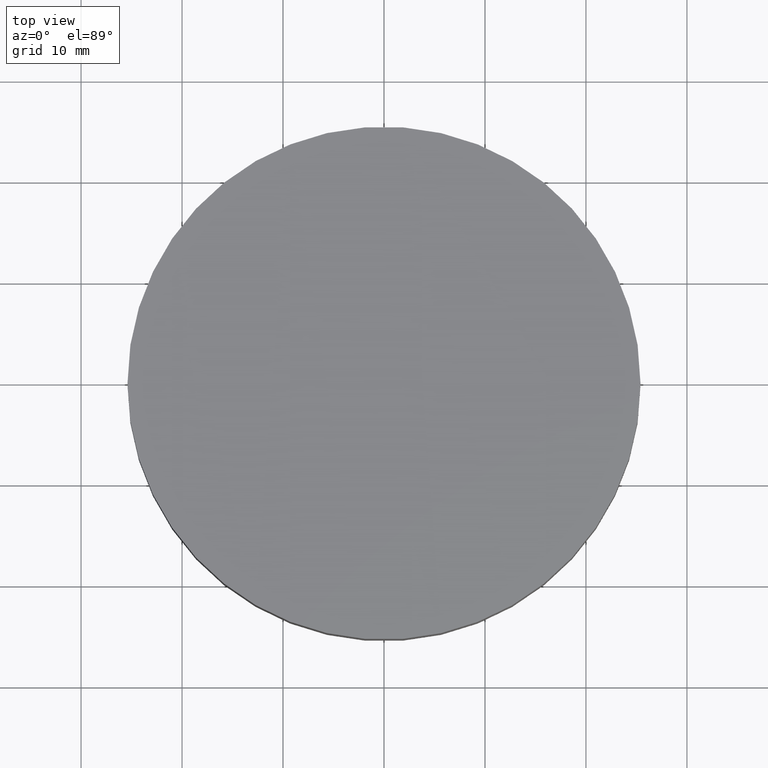
[diagram: clean part render]
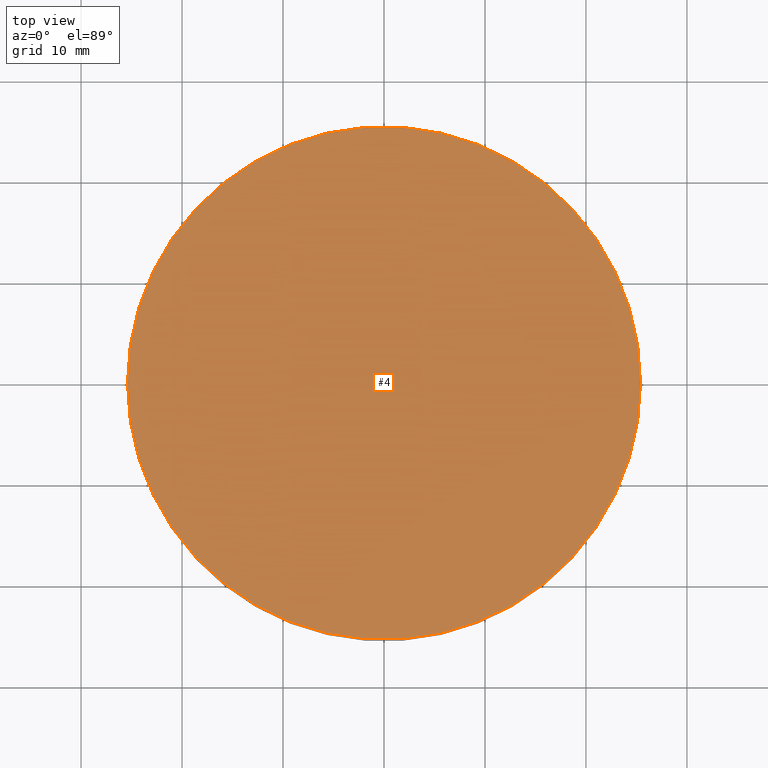
[diagram: same view with one face highlighted and labeled with its STEP entity id]
A machine part, top view. The second image highlights one B-rep face of the part: STEP entity #4.
In plain terms, the highlighted planar face has unit normal (0, 0, 1).
Its self-contained STEP definition (entity closure, byte-faithful):
#4 = ADVANCED_FACE ( 'NONE', ( #64 ), #25, .T. ) ;
#10 = ORIENTED_EDGE ( 'NONE', *, *, #33, .T. ) ;
#11 = CARTESIAN_POINT ( 'NONE',  ( 0.0000000000000000000, 0.0000000000000000000, 10.00000000000000000 ) ) ;
#25 = PLANE ( 'NONE',  #116 ) ;
#33 = EDGE_CURVE ( 'NONE', #136, #124, #97, .T. ) ;
#35 = CIRCLE ( 'NONE', #89, 25.39999999999999900 ) ;
#42 = CARTESIAN_POINT ( 'NONE',  ( -25.39999999999999900, 0.0000000000000000000, 10.00000000000000000 ) ) ;
#47 = CARTESIAN_POINT ( 'NONE',  ( 25.39999999999999900, 3.110602869834276900E-015, 10.00000000000000000 ) ) ;
#59 = DIRECTION ( 'NONE',  ( 1.000000000000000000, 0.0000000000000000000, 0.0000000000000000000 ) ) ;
#60 = DIRECTION ( 'NONE',  ( 0.0000000000000000000, 0.0000000000000000000, 1.000000000000000000 ) ) ;
#64 = FACE_OUTER_BOUND ( 'NONE', #118, .T. ) ;
#69 = DIRECTION ( 'NONE',  ( 1.000000000000000000, 0.0000000000000000000, -0.0000000000000000000 ) ) ;
#70 = CARTESIAN_POINT ( 'NONE',  ( 0.0000000000000000000, 0.0000000000000000000, 10.00000000000000000 ) ) ;
#71 = ORIENTED_EDGE ( 'NONE', *, *, #106, .T. ) ;
#89 = AXIS2_PLACEMENT_3D ( 'NONE', #121, #134, #59 ) ;
#97 = CIRCLE ( 'NONE', #126, 25.39999999999999900 ) ;
#106 = EDGE_CURVE ( 'NONE', #124, #136, #35, .T. ) ;
#113 = DIRECTION ( 'NONE',  ( 0.0000000000000000000, 0.0000000000000000000, 1.000000000000000000 ) ) ;
#114 = DIRECTION ( 'NONE',  ( 1.000000000000000000, 0.0000000000000000000, 0.0000000000000000000 ) ) ;
#116 = AXIS2_PLACEMENT_3D ( 'NONE', #70, #60, #69 ) ;
#118 = EDGE_LOOP ( 'NONE', ( #71, #10 ) ) ;
#121 = CARTESIAN_POINT ( 'NONE',  ( 0.0000000000000000000, 0.0000000000000000000, 10.00000000000000000 ) ) ;
#124 = VERTEX_POINT ( 'NONE', #42 ) ;
#126 = AXIS2_PLACEMENT_3D ( 'NONE', #11, #113, #114 ) ;
#134 = DIRECTION ( 'NONE',  ( 0.0000000000000000000, 0.0000000000000000000, 1.000000000000000000 ) ) ;
#136 = VERTEX_POINT ( 'NONE', #47 ) ;